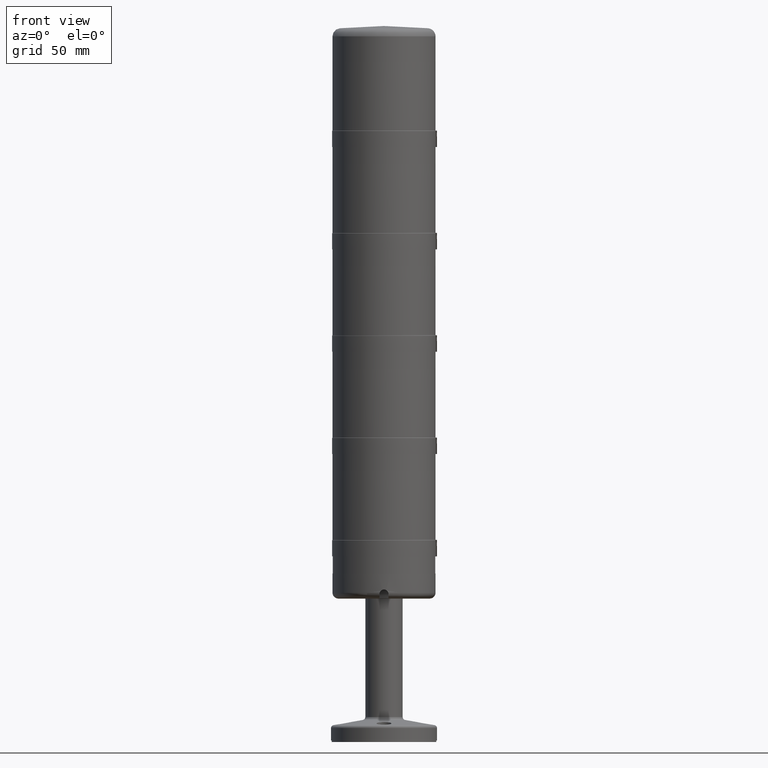
[diagram: clean part render]
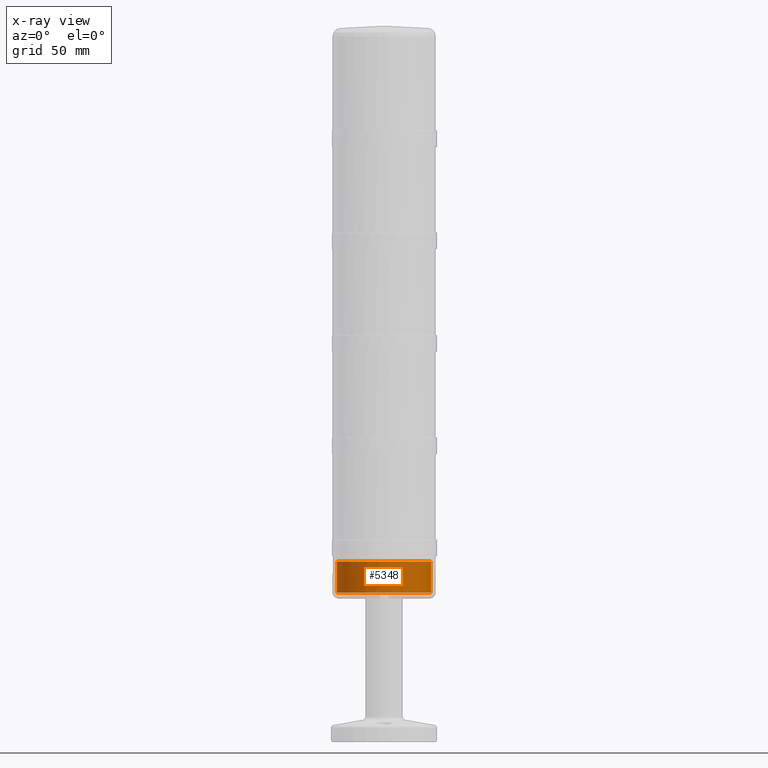
[diagram: x-ray — body ghosted, one internal face saturated and labeled with its STEP entity id]
A machine part, front view, then the same camera in x-ray: the body is ghosted and one INTERNAL B-rep face — a face not visible from any outside direction — is saturated and labeled: STEP entity #5348.
In plain terms, the highlighted cylindrical surface (bore or boss wall) has radius 31.5 mm, axis along (0, 0, -1).
Its self-contained STEP definition (entity closure, byte-faithful):
#189=B_SPLINE_CURVE_WITH_KNOTS('',3,(#34555,#34556,#34557,#34558,#34559,
#34560,#34561,#34562,#34563,#34564),.UNSPECIFIED.,.F.,.F.,(4,2,2,2,4),(0.,
0.25,0.5,0.75,1.),.UNSPECIFIED.);
#3672=CYLINDRICAL_SURFACE('',#21953,31.5);
#4245=FACE_BOUND('',#8317,.T.);
#4246=FACE_BOUND('',#8318,.T.);
#5348=ADVANCED_FACE('',(#4245,#4246),#3672,.F.);
#8317=EDGE_LOOP('',(#13075,#13076));
#8318=EDGE_LOOP('',(#13077));
#13075=ORIENTED_EDGE('',*,*,#18335,.T.);
#13076=ORIENTED_EDGE('',*,*,#18336,.T.);
#13077=ORIENTED_EDGE('',*,*,#18289,.F.);
#15694=VERTEX_POINT('',#34332);
#15734=VERTEX_POINT('',#34553);
#15735=VERTEX_POINT('',#34554);
#18289=EDGE_CURVE('',#15694,#15694,#19747,.T.);
#18335=EDGE_CURVE('',#15734,#15735,#19771,.T.);
#18336=EDGE_CURVE('',#15735,#15734,#189,.T.);
#19747=CIRCLE('',#21910,31.5);
#19771=CIRCLE('',#21952,31.5);
#21910=AXIS2_PLACEMENT_3D('',#34331,#27351,#27352);
#21952=AXIS2_PLACEMENT_3D('',#34552,#27448,#27449);
#21953=AXIS2_PLACEMENT_3D('',#34565,#27450,#27451);
#27351=DIRECTION('',(0.,0.,-1.));
#27352=DIRECTION('',(-1.,0.,0.));
#27448=DIRECTION('',(0.,0.,-1.));
#27449=DIRECTION('',(-1.,0.,0.));
#27450=DIRECTION('',(0.,0.,-1.));
#27451=DIRECTION('',(-1.,0.,0.));
#34331=CARTESIAN_POINT('',(0.,0.,63.5));
#34332=CARTESIAN_POINT('',(-31.5,0.,63.5));
#34552=CARTESIAN_POINT('',(0.,0.,42.75));
#34553=CARTESIAN_POINT('',(-5.25485167832952,-31.0585983881881,42.75));
#34554=CARTESIAN_POINT('',(5.25485167832952,-31.0585983881881,42.75));
#34555=CARTESIAN_POINT('',(5.25485167832952,-31.0585983881881,42.75));
#34556=CARTESIAN_POINT('',(5.01868922364761,-31.0985550744439,43.9674731636511));
#34557=CARTESIAN_POINT('',(4.35160343048612,-31.2126233632881,45.0666097854714));
#34558=CARTESIAN_POINT('',(2.45039180558541,-31.4191007133211,46.616906762095));
#34559=CARTESIAN_POINT('',(1.233459384924,-31.5000382530587,47.0502230431746));
#34560=CARTESIAN_POINT('',(-1.23541241972689,-31.4999617166688,47.0497767803142));
#34561=CARTESIAN_POINT('',(-2.44695299975751,-31.4194966190193,46.619990310731));
#34562=CARTESIAN_POINT('',(-4.35649772008541,-31.2120693705252,45.0623391847697));
#34563=CARTESIAN_POINT('',(-5.01868287927366,-31.0985561478582,43.9675058703954));
#34564=CARTESIAN_POINT('',(-5.25485167832952,-31.0585983881881,42.75));
#34565=CARTESIAN_POINT('',(0.,0.,38.75));